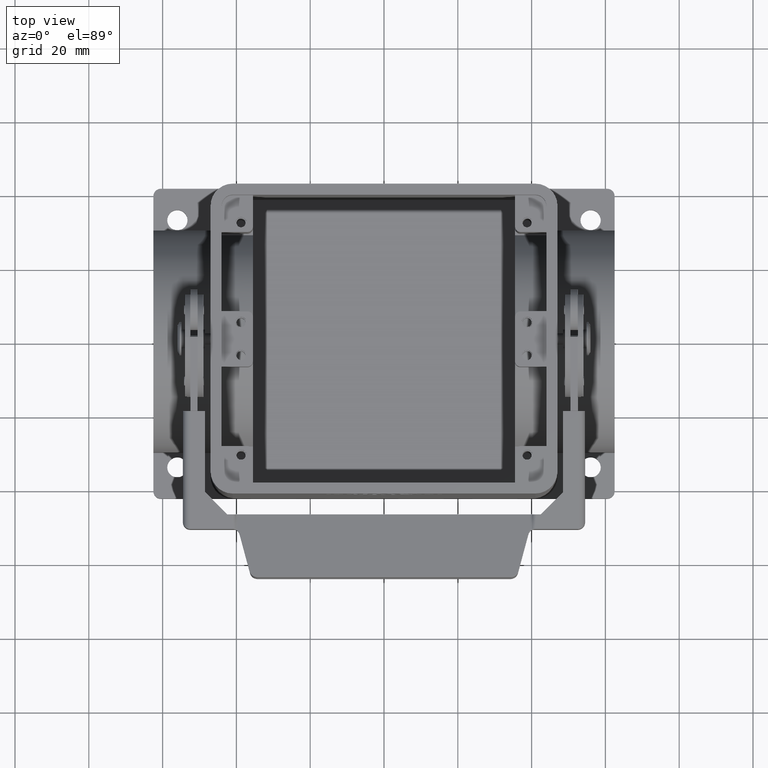
[diagram: clean part render]
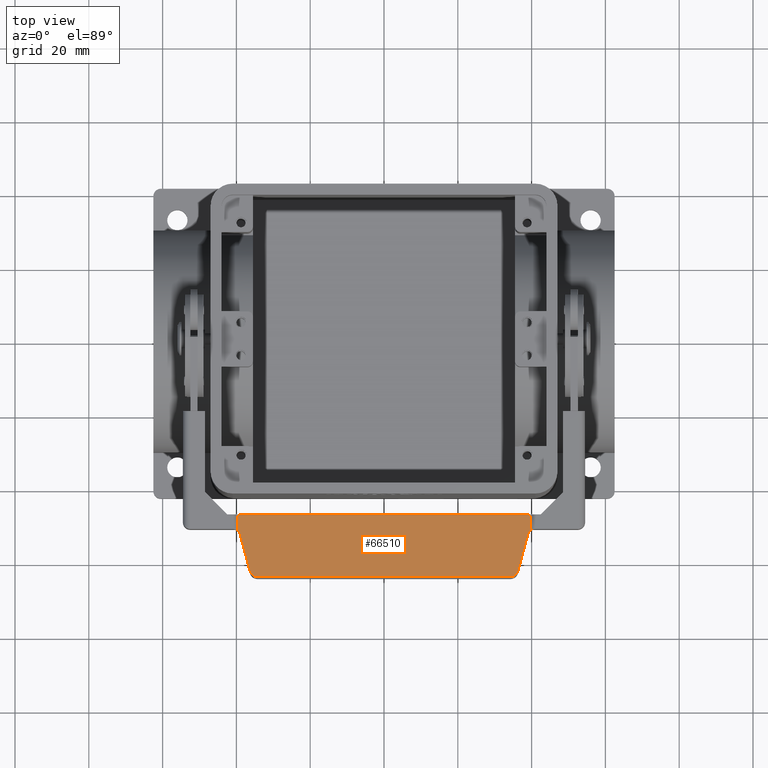
[diagram: same view with one face highlighted and labeled with its STEP entity id]
A machine part, top view. The second image highlights one B-rep face of the part: STEP entity #66510.
In plain terms, the highlighted planar face has unit normal (0, 0.1736, 0.9848).
Its self-contained STEP definition (entity closure, byte-faithful):
#23830=CARTESIAN_POINT('',(38.9675727076993,-53.4718164986072,
52.9560125331548));
#23840=DIRECTION('',(-0.255144817820936,-0.952213423395666,
0.167900917937419));
#23850=VECTOR('',#23840,1.);
#23860=LINE('',#23830,#23850);
#23870=CARTESIAN_POINT('',(38.9675727076993,-53.4718164986072,
52.9560125331548));
#23880=VERTEX_POINT('',#23870);
#23890=CARTESIAN_POINT('',(36.2665901059189,-63.5520207988115,
54.7334245223342));
#23900=VERTEX_POINT('',#23890);
#23910=EDGE_CURVE('',#23880,#23900,#23860,.T.);
#24280=CARTESIAN_POINT('',(-36.2665901059188,-63.5520207988115,
54.7334245223342));
#24290=DIRECTION('',(-0.255144817820947,0.952213423395663,
-0.16790091793742));
#24300=VECTOR('',#24290,1.);
#24310=LINE('',#24280,#24300);
#24320=CARTESIAN_POINT('',(-36.2665901059188,-63.5520207988115,
54.7334245223342));
#24330=VERTEX_POINT('',#24320);
#24340=CARTESIAN_POINT('',(-38.9675727076993,-53.4718164986073,
52.9560125331548));
#24350=VERTEX_POINT('',#24340);
#24360=EDGE_CURVE('',#24330,#24350,#24310,.T.);
#24730=CARTESIAN_POINT('',(34.4660784945839,-64.9168758849433,
54.9740852987765));
#24740=DIRECTION('',(-1.,0.,0.));
#24750=VECTOR('',#24740,1.);
#24760=LINE('',#24730,#24750);
#24770=CARTESIAN_POINT('',(34.4660784945839,-64.9168758849433,
54.9740852987765));
#24780=VERTEX_POINT('',#24770);
#24790=CARTESIAN_POINT('',(-34.4660784945839,-64.9168758849433,
54.9740852987765));
#24800=VERTEX_POINT('',#24790);
#24810=EDGE_CURVE('',#24780,#24800,#24760,.T.);
#43650=CARTESIAN_POINT('',(-34.4663024528467,-63.0823587333215,
54.6506104283731));
#43660=DIRECTION('',(7.9675408516249E-15,-0.173648177666922,
-0.98480775301221));
#43670=DIRECTION('',(0.,-0.98480775301221,0.173648177666922));
#43680=AXIS2_PLACEMENT_3D('',#43650,#43660,#43670);
#43690=CIRCLE('',#43680,1.86281754918033);
#43700=EDGE_CURVE('',#24800,#24330,#43690,.T.);
#44400=CARTESIAN_POINT('',(34.4677515390813,-63.0842127196738,
54.6509373361889));
#44410=DIRECTION('',(-4.88675838899648E-15,-0.173648177666924,
-0.984807753012209));
#44420=DIRECTION('',(0.,-0.984807753012209,0.173648177666924));
#44430=AXIS2_PLACEMENT_3D('',#44400,#44410,#44420);
#44440=CIRCLE('',#44430,1.86050227743126);
#44450=EDGE_CURVE('',#23900,#24780,#44440,.T.);
#46070=CARTESIAN_POINT('',(-38.9675727076993,-53.4718164986073,
52.9560125331548));
#46080=CARTESIAN_POINT('',(-39.1705405939103,-52.7143300349631,
52.8224472320928));
#46090=CARTESIAN_POINT('',(-39.8148897854225,-52.2673447725273,
52.7436316703464));
#46100=(BOUNDED_CURVE() B_SPLINE_CURVE(2,(#46070,#46080,#46090),
.UNSPECIFIED.,.F.,.F.) B_SPLINE_CURVE_WITH_KNOTS((3,3),(0.,1.),
.UNSPECIFIED.) CURVE() GEOMETRIC_REPRESENTATION_ITEM() 
RATIONAL_B_SPLINE_CURVE((1.,0.938941387097095,1.)) REPRESENTATION_ITEM(
''));
#46110=CARTESIAN_POINT('',(-39.8148897854226,-52.2673447715287,
52.7436316701703));
#46120=VERTEX_POINT('',#46110);
#46130=EDGE_CURVE('',#24350,#46120,#46100,.T.);
#46890=CARTESIAN_POINT('',(39.814889785196,-52.2673447726844,
52.7436316703741));
#46900=CARTESIAN_POINT('',(39.1705405938698,-52.714330035114,
52.8224472321195));
#46910=CARTESIAN_POINT('',(38.9675727076993,-53.4718164986072,
52.9560125331548));
#46920=(BOUNDED_CURVE() B_SPLINE_CURVE(2,(#46890,#46900,#46910),
.UNSPECIFIED.,.F.,.F.) B_SPLINE_CURVE_WITH_KNOTS((3,3),(0.,1.),
.UNSPECIFIED.) CURVE() GEOMETRIC_REPRESENTATION_ITEM() 
RATIONAL_B_SPLINE_CURVE((1.,0.938941387119263,1.)) REPRESENTATION_ITEM(
''));
#46930=CARTESIAN_POINT('',(39.8148897851796,-52.2673447726844,
52.7436316703741));
#46940=VERTEX_POINT('',#46930);
#46950=EDGE_CURVE('',#46940,#23880,#46920,.T.);
#54610=CARTESIAN_POINT('',(39.5001154088269,-48.0500000031683,
52.0000000005587));
#54620=CARTESIAN_POINT('',(39.4990016905986,-48.4657042259454,
52.0732998710287));
#54630=CARTESIAN_POINT('',(39.5058534307483,-48.8815270940753,
52.1466206618756));
#54640=CARTESIAN_POINT('',(39.5316279113211,-49.580558486185,
52.2698787566667));
#54650=CARTESIAN_POINT('',(39.5460442898012,-49.8639727576225,
52.319852339439));
#54660=CARTESIAN_POINT('',(39.5757682628997,-50.3085124778095,
52.3982366861046));
#54670=CARTESIAN_POINT('',(39.5880462657449,-50.4699723301897,
52.4267064143804));
#54680=CARTESIAN_POINT('',(39.6242832619067,-50.8894439735579,
52.5006705827483));
#54690=CARTESIAN_POINT('',(39.6507766274512,-51.1472654965521,
52.5461314734595));
#54700=CARTESIAN_POINT('',(39.7186512299687,-51.6931749041426,
52.6423900310403));
#54710=CARTESIAN_POINT('',(39.7612527668074,-51.981248066593,
52.6931851019983));
#54720=CARTESIAN_POINT('',(39.8148897851796,-52.2673447726844,
52.7436316703741));
#54730=B_SPLINE_CURVE_WITH_KNOTS('',3,(#54610,#54620,#54630,#54640,
#54650,#54660,#54670,#54680,#54690,#54700,#54710,#54720),.UNSPECIFIED.,
.F.,.F.,(4,2,2,2,2,4),(0.,0.294543782521416,0.495601465492626,
0.610304497810925,0.793829349520207,1.),.UNSPECIFIED.);
#54740=CARTESIAN_POINT('',(39.5001154088269,-48.0500000031683,
52.0000000005587));
#54750=VERTEX_POINT('',#54740);
#54760=EDGE_CURVE('',#54750,#46940,#54730,.T.);
#64850=CARTESIAN_POINT('',(0.,-48.05,52.));
#64860=DIRECTION('',(-1.,-0.,0.));
#64870=VECTOR('',#64860,1.);
#64880=LINE('',#64850,#64870);
#64890=CARTESIAN_POINT('',(-39.5001154088247,-48.0500000035698,
52.0000000006294));
#64900=VERTEX_POINT('',#64890);
#64910=EDGE_CURVE('',#54750,#64900,#64880,.T.);
#66060=CARTESIAN_POINT('',(-39.8148897854226,-52.2673447715287,
52.7436316701703));
#66070=CARTESIAN_POINT('',(-39.7366008647724,-51.8497562661479,
52.6699995498379));
#66080=CARTESIAN_POINT('',(-39.6810468124457,-51.4275152832672,
52.5955470721952));
#66090=CARTESIAN_POINT('',(-39.6077728204473,-50.7185104052293,
52.4705303827432));
#66100=CARTESIAN_POINT('',(-39.5840579107936,-50.4324890990716,
52.4200971094101));
#66110=CARTESIAN_POINT('',(-39.556674211768,-50.022949571425,
52.3478842410194));
#66120=CARTESIAN_POINT('',(-39.5492496699721,-49.8987983701591,
52.3259930345489));
#66130=CARTESIAN_POINT('',(-39.5320664524956,-49.5758649306656,
52.2690511561932));
#66140=CARTESIAN_POINT('',(-39.5235764409911,-49.3769988393315,
52.233985698743));
#66150=CARTESIAN_POINT('',(-39.5065304434131,-48.8597427440522,
52.1427794932093));
#66160=CARTESIAN_POINT('',(-39.5009738596077,-48.5412290644829,
52.0866169377765));
#66170=CARTESIAN_POINT('',(-39.4999615199163,-48.1651512245714,
52.0203042677535));
#66180=CARTESIAN_POINT('',(-39.4999611591187,-48.1075749384611,
52.0101520150633));
#66190=CARTESIAN_POINT('',(-39.5001154088247,-48.0500000035698,
52.0000000006294));
#66200=B_SPLINE_CURVE_WITH_KNOTS('',3,(#66060,#66070,#66080,#66090,
#66100,#66110,#66120,#66130,#66140,#66150,#66160,#66170,#66180,#66190),
.UNSPECIFIED.,.F.,.F.,(4,2,2,2,2,2,4),(0.,0.301185243907234,
0.504091192856755,0.592287519583453,0.733401642346156,0.95918423876648,
1.),.UNSPECIFIED.);
#66210=EDGE_CURVE('',#46120,#64900,#66200,.T.);
#66340=CARTESIAN_POINT('',(-47.7778677424845,-66.6035634731208,
55.2714938285982));
#66350=DIRECTION('',(0.,0.173648177666927,0.984807753012209));
#66360=DIRECTION('',(0.,0.984807753012209,-0.173648177666927));
#66370=AXIS2_PLACEMENT_3D('',#66340,#66350,#66360);
#66380=PLANE('',#66370);
#66390=ORIENTED_EDGE('',*,*,#23910,.F.);
#66400=ORIENTED_EDGE('',*,*,#44450,.F.);
#66410=ORIENTED_EDGE('',*,*,#24810,.F.);
#66420=ORIENTED_EDGE('',*,*,#43700,.F.);
#66430=ORIENTED_EDGE('',*,*,#24360,.F.);
#66440=ORIENTED_EDGE('',*,*,#46130,.F.);
#66450=ORIENTED_EDGE('',*,*,#66210,.F.);
#66460=ORIENTED_EDGE('',*,*,#64910,.T.);
#66470=ORIENTED_EDGE('',*,*,#54760,.F.);
#66480=ORIENTED_EDGE('',*,*,#46950,.F.);
#66490=EDGE_LOOP('',(#66480,#66470,#66460,#66450,#66440,#66430,#66420,
#66410,#66400,#66390));
#66500=FACE_OUTER_BOUND('',#66490,.T.);
#66510=ADVANCED_FACE('',(#66500),#66380,.T.);